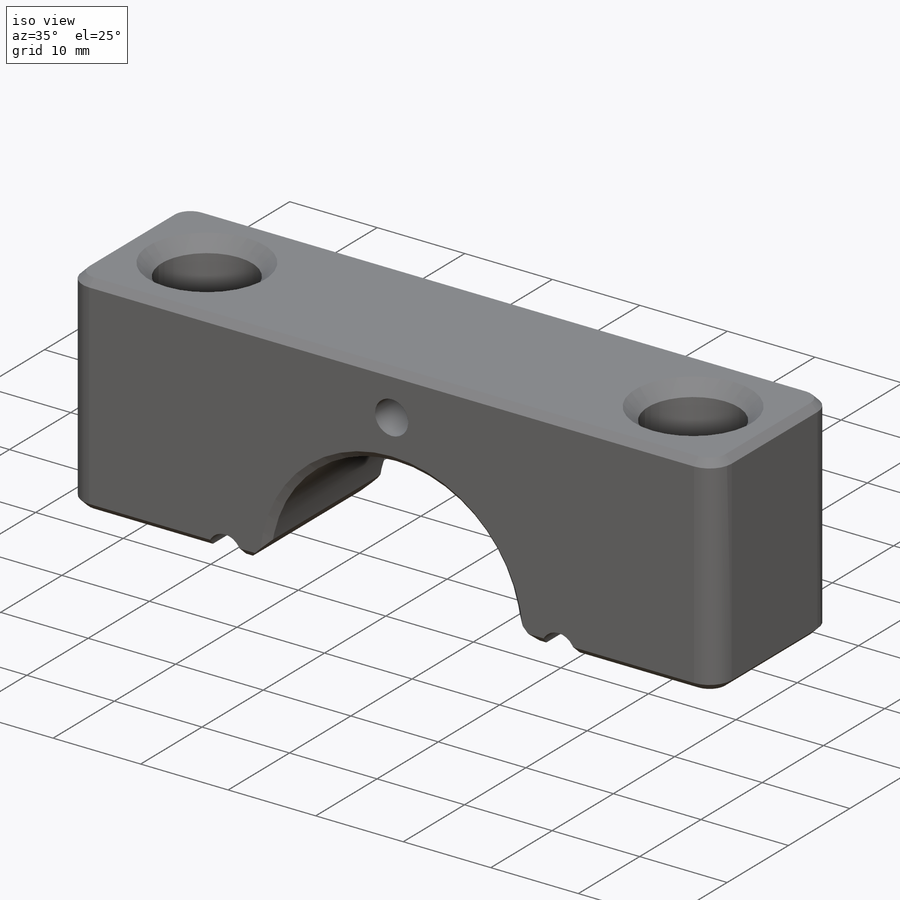
[diagram: iso view]
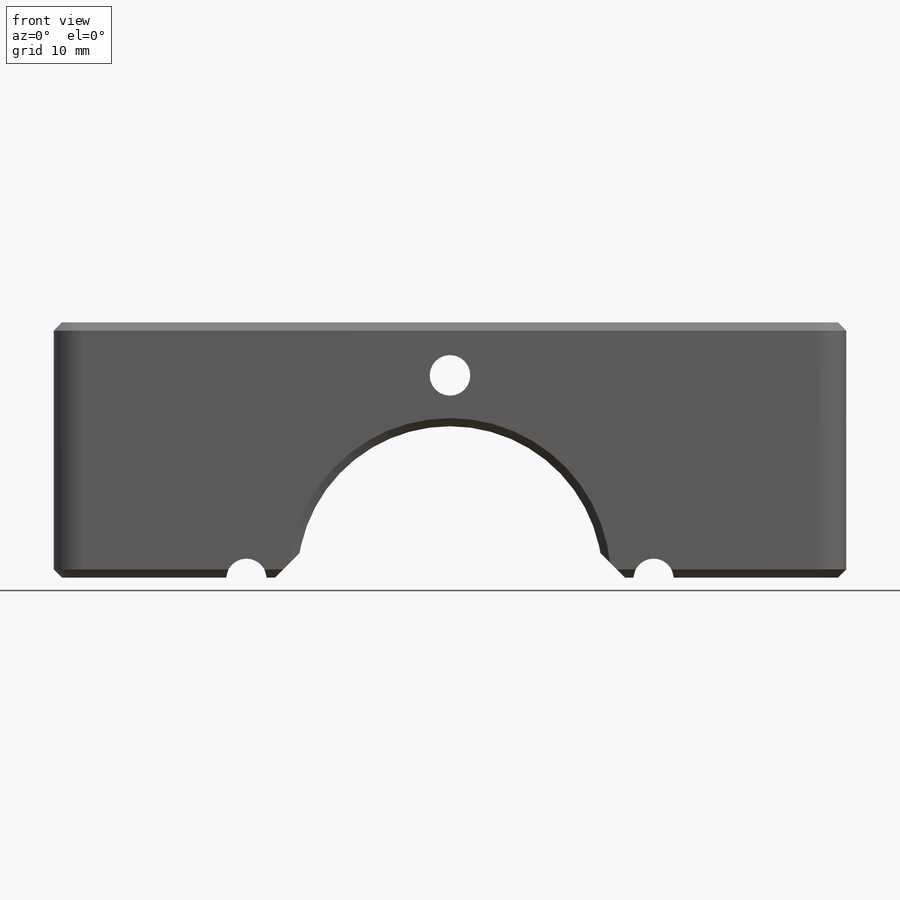
[diagram: front view]
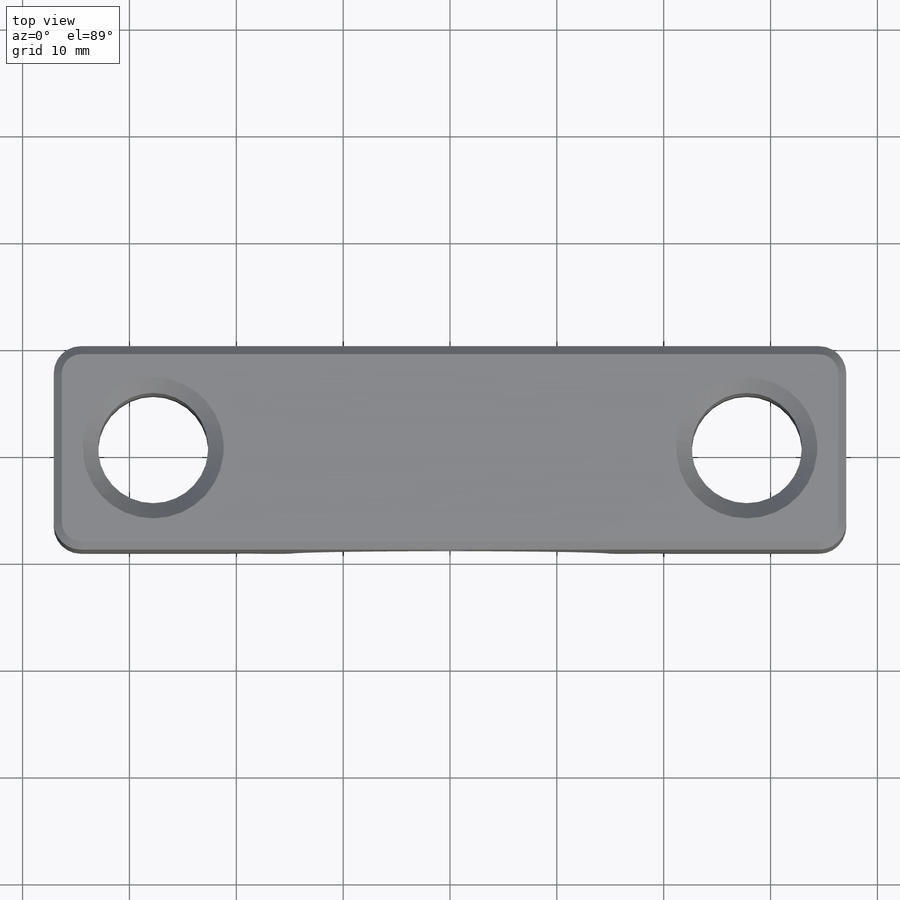
[diagram: top view]
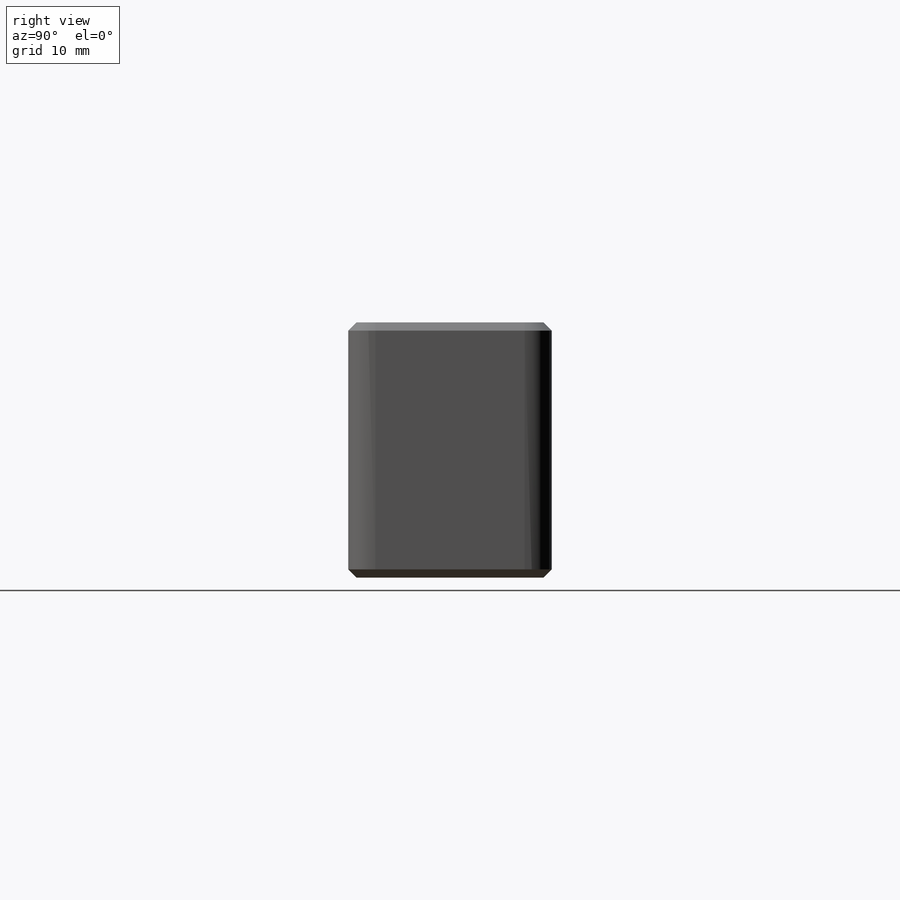
[diagram: right view]
SOLIDWORKS PART (.sldprt)
format: sldprt  version: not decoded by parser v0  size: 364,544 bytes
history: native  units: mm
features: sketch x7, chamfer x3, hole x2, cut_extrude x2, material x1, extrude x1, fillet x1 (+16 scaffold rows collapsed)
feature tree (33):
  scaffold x16  (default folders/planes/origin — collapsed)
  material  "2024-T351 Al"
  sketch  "Sketch1"  dims[D1=74.168mm D2=23.876mm]
  extrude  "Extrude1"  Depth=19.05mm
  hole  "3/8 Clearance Hole1"  Diameter=10.31748mm Depth=23.876mm
  sketch  "Sketch3"  dims[D1=55.5498mm D2=50.8mm]
  sketch  "Sketch2"  dims[hole-wizard template sketch: 46 standard entries collapsed; hole parameters kept: c15.Thru Hole Dia.=~10.31748mm c15.Thru Hole Depth=23.876mm c15.Near C'Sink Dia.=11.684mm c15.D4=~3.666174mm c15.Near C'Sink Angle=82.0deg c15.Far C'Sink Dia.=11.684mm c15.D6=~9.919017mm c15.Far C'Sink Angle=82.0deg]
  sketch  "Sketch4"  dims[D1=28.575mm D2=0.127mm]
  cut_extrude  "Extrude2"  [1 undecoded]
  sketch  "Sketch5"  dims[D1=2.286mm]
  cut_extrude  "Extrude3"  [1 undecoded]
  fillet  "Fillet1"  Radius=2.54mm
  chamfer  "Chamfer1"  Distance=0.762mm Angle=45deg
  chamfer  "Chamfer2"  Distance=0.762mm Angle=45deg
  hole  "#25 (0.1495) Diameter Hole1"  Diameter=3.7973mm Depth=19.05mm
  sketch  "Sketch7"  dims[c1.D1=19.05mm c1.D2=0.127mm c1.D3=38.1mm c2.D1=19.05mm]
  sketch  "Sketch6"  dims[hole-wizard template sketch: 60 standard entries collapsed; hole parameters kept: c18.Thru Hole Depth=19.05mm]
  chamfer  "Chamfer3"  Distance=0.762mm Angle=45deg
decode coverage: 14 of 16 modeling features carry decoded parameters
note: ~ marks probable driven/reference dimensions
note: 2 parameter values undecoded
note: suppression state not decoded; provenance and decode notes live in map.json
